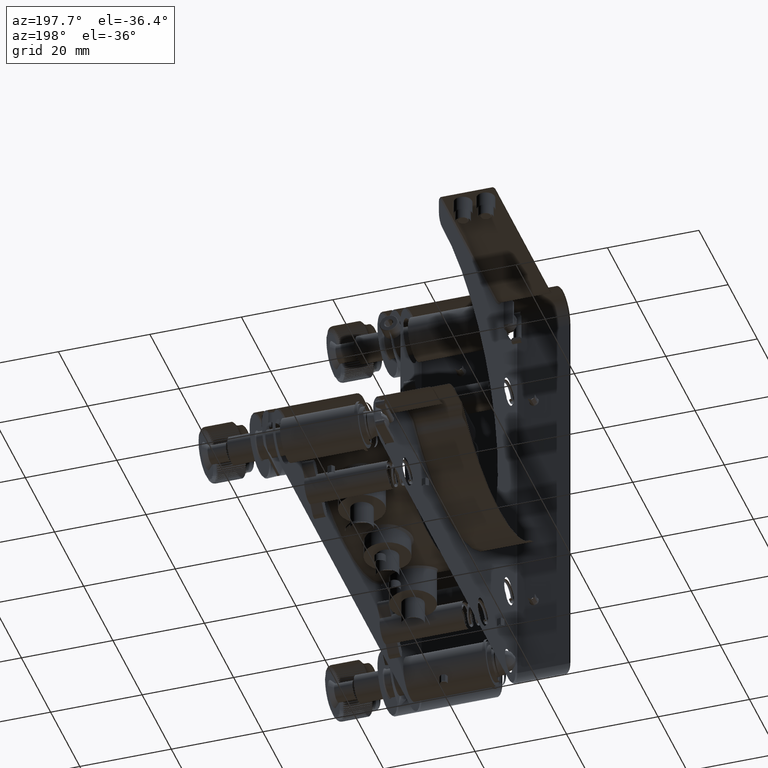
[diagram: clean part render]
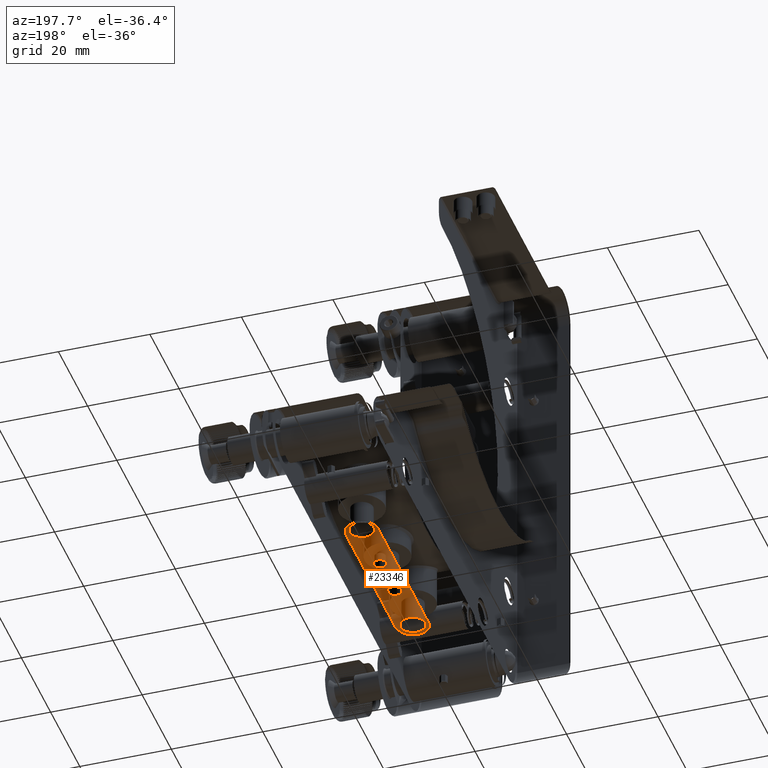
[diagram: same view with one face highlighted and labeled with its STEP entity id]
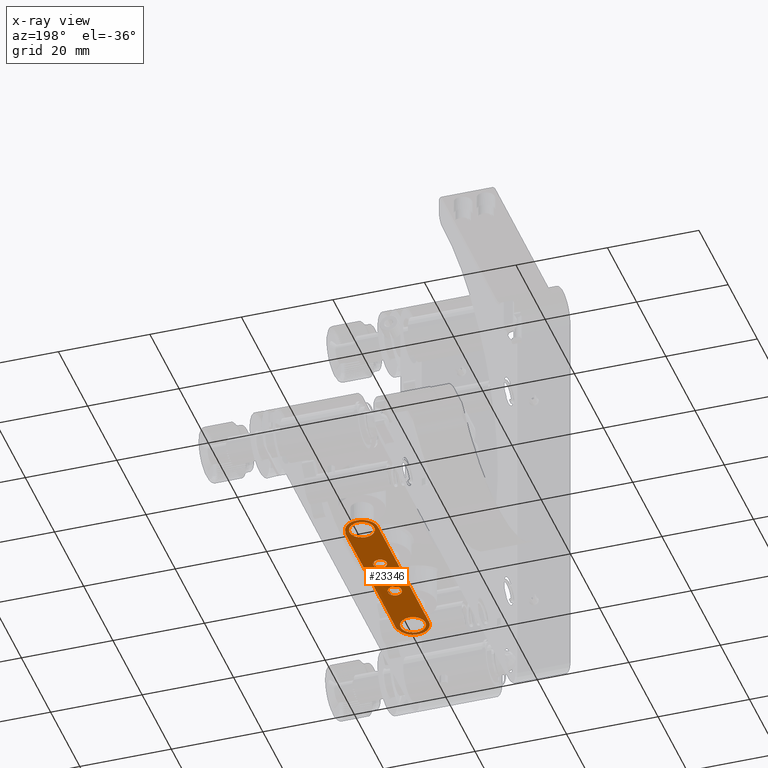
[diagram: x-ray of the same camera — body ghosted, the highlighted face saturated]
A machine part, auxiliary view. The second image highlights one B-rep face of the part: STEP entity #23346.
The next image is the same camera in x-ray: the body ghosted, the highlighted face saturated — about 0% of this face is hidden behind the body in this view.
In plain terms, the highlighted planar face has unit normal (0, 0, -1).
Its self-contained STEP definition (entity closure, byte-faithful):
#184 = EDGE_CURVE ( 'NONE', #22602, #35851, #21252, .T. ) ;
#203 = CARTESIAN_POINT ( 'NONE',  ( 0.3795344323298357470, 6.412260381202104398, -50.20000000001800800 ) ) ;
#240 = EDGE_LOOP ( 'NONE', ( #40561, #46125 ) ) ;
#431 = CARTESIAN_POINT ( 'NONE',  ( -2.359223248609979784, 1.359771247032254715, -50.20000000001800089 ) ) ;
#456 = CARTESIAN_POINT ( 'NONE',  ( 2.159100474478578224, -19.15927614393495659, -50.19999999996116458 ) ) ;
#709 = CARTESIAN_POINT ( 'NONE',  ( 0.3534291735368639831, 2.700000000061209882, -50.20000000001801510 ) ) ;
#861 = CARTESIAN_POINT ( 'NONE',  ( 1.412260381202098403, 4.620465567670169804, -50.20000000001800089 ) ) ;
#953 = CARTESIAN_POINT ( 'NONE',  ( 3.499999999999990230, -17.95814892864851231, -50.19999999999998863 ) ) ;
#1113 = CARTESIAN_POINT ( 'NONE',  ( 1.659276143969886652, -2.159100474524032531, -50.20000000001800800 ) ) ;
#1134 = CARTESIAN_POINT ( 'NONE',  ( 1.359771247003628503, 15.14077675143968982, -50.19999999996117879 ) ) ;
#1315 = CARTESIAN_POINT ( 'NONE',  ( -1.159516921459032845, -3.983907256050452705, -50.19999999996115037 ) ) ;
#1319 = FACE_BOUND ( 'NONE', #37220, .T. ) ;
#1331 = CARTESIAN_POINT ( 'NONE',  ( -1.359771247003626726, 19.85922324856030841, -50.19999999996116458 ) ) ;
#1634 = CARTESIAN_POINT ( 'NONE',  ( -0.8910927439495412994, -6.284516921459028183, -50.19999999996115747 ) ) ;
#1674 = CARTESIAN_POINT ( 'NONE',  ( -2.629726227008703177, 16.79328071222879259, -50.19999999996117168 ) ) ;
#1751 = CARTESIAN_POINT ( 'NONE',  ( 1.762666431298150593, 20.55825235923990135, -50.19999999999998863 ) ) ;
#1865 = B_SPLINE_CURVE_WITH_KNOTS ( 'NONE', 3,
 ( #30729, #9612, #26138, #1751, #2549, #46962, #5536, #43188, #19087, #27204 ),
 .UNSPECIFIED., .F., .F.,
 ( 4, 2, 2, 2, 4 ),
 ( 0.000000000000000000, 0.2500000000000000000, 0.5000000000000000000, 0.7500000000000000000, 1.000000000000000000 ),
 .UNSPECIFIED. ) ;
#1905 = CARTESIAN_POINT ( 'NONE',  ( 0.3795344323149583698, -6.537260381146730914, -50.19999999996116458 ) ) ;
#1920 = CARTESIAN_POINT ( 'NONE',  ( 2.359223248609979784, -1.359771247032253827, -50.20000000001800089 ) ) ;
#2169 = CARTESIAN_POINT ( 'NONE',  ( -0.3795344323149573706, -6.537260381146729138, -50.19999999996117168 ) ) ;
#2402 = CARTESIAN_POINT ( 'NONE',  ( -1.449999999977080289, -4.685195443848612307, -50.19999999996115747 ) ) ;
#2480 = CARTESIAN_POINT ( 'NONE',  ( 2.700000000004366019, 17.14657082647057607, -50.19999999996117168 ) ) ;
#2533 = CARTESIAN_POINT ( 'NONE',  ( 2.700000000036712144, 1.983927814677386482E-16, -50.20000000001080309 ) ) ;
#2549 = CARTESIAN_POINT ( 'NONE',  ( 2.150913519912204475, 20.29883394839363220, -50.19999999999998863 ) ) ;
#2617 = CARTESIAN_POINT ( 'NONE',  ( -2.700000000004366463, 17.85342917352942393, -50.19999999996116458 ) ) ;
#2843 = CARTESIAN_POINT ( 'NONE',  ( 0.7067192877711989674, -14.87027377299130571, -50.19999999996116458 ) ) ;
#2922 = CARTESIAN_POINT ( 'NONE',  ( 2.629726227064068222, 0.7067192877860780653, -50.20000000001800800 ) ) ;
#3370 = CARTESIAN_POINT ( 'NONE',  ( -2.629726227008703621, -16.79328071222881036, -50.19999999996116458 ) ) ;
#3456 = CARTESIAN_POINT ( 'NONE',  ( 3.500000000000000444, 17.50000000000000711, -50.59999999999997300 ) ) ;
#3632 = CARTESIAN_POINT ( 'NONE',  ( 2.359223248560310626, -16.14022875299637505, -50.19999999996115747 ) ) ;
#3723 = CARTESIAN_POINT ( 'NONE',  ( 3.499999999999995115, -5.833333333333327708, -50.59999999999998010 ) ) ;
#4424 = EDGE_CURVE ( 'NONE', #6648, #52735, #43608, .T. ) ;
#4543 = CARTESIAN_POINT ( 'NONE',  ( 0.1898045561588238561, 6.450000000033929481, -50.20000000001800800 ) ) ;
#4795 = CARTESIAN_POINT ( 'NONE',  ( 2.699999999979879384, -17.50000000000000711, -50.19999999995395967 ) ) ;
#4847 = PLANE ( 'NONE',  #48909 ) ;
#5014 = CARTESIAN_POINT ( 'NONE',  ( -3.058252359239904461, -19.26266643129813971, -50.20000000000000284 ) ) ;
#5072 = CARTESIAN_POINT ( 'NONE',  ( 2.359223248560311070, -18.85977124700363561, -50.19999999996116458 ) ) ;
#5236 = VERTEX_POINT ( 'NONE', #27397 ) ;
#5445 = CARTESIAN_POINT ( 'NONE',  ( -1.659276143969885764, -2.159100474524033864, -50.20000000001802931 ) ) ;
#5536 = CARTESIAN_POINT ( 'NONE',  ( 3.058252359239903129, 19.26266643129815392, -50.19999999999998863 ) ) ;
#5597 = CARTESIAN_POINT ( 'NONE',  ( -0.3534291735294228798, -20.20000000000437979, -50.19999999996117168 ) ) ;
#5689 = CARTESIAN_POINT ( 'NONE',  ( 1.159516921459033512, -6.016092743949536192, -50.19999999996116458 ) ) ;
#5726 = CARTESIAN_POINT ( 'NONE',  ( -1.266990263143315865, 4.269752478445115074, -50.20000000001801510 ) ) ;
#5919 = CARTESIAN_POINT ( 'NONE',  ( 0.1898045561513836132, -3.425000000022913493, -50.19999999996116458 ) ) ;
#6004 = CARTESIAN_POINT ( 'NONE',  ( -1.412260381202098403, 4.620465567670168028, -50.20000000001800800 ) ) ;
#6005 = CARTESIAN_POINT ( 'NONE',  ( 2.359223248560311070, 16.14022875299637150, -50.19999999996116458 ) ) ;
#6017 = CARTESIAN_POINT ( 'NONE',  ( -3.408904368339104707, -18.41611759525747516, -50.19999999999998863 ) ) ;
#6237 = CARTESIAN_POINT ( 'NONE',  ( -1.449999999988529797, -5.124999999999993783, -50.19999999998057660 ) ) ;
#6648 = VERTEX_POINT ( 'NONE', #48501 ) ;
#6903 = CARTESIAN_POINT ( 'NONE',  ( 2.629726227008704509, -16.79328071222881036, -50.19999999996117168 ) ) ;
#7225 = EDGE_CURVE ( 'NONE', #35851, #22602, #9220, .T. ) ;
#7321 = B_SPLINE_CURVE_WITH_KNOTS ( 'NONE', 3,
 ( #36170, #28554, #6903, #3632, #23446, #49099, #39961, #2843, #32098, #15313, #45057, #7429, #31829, #36687, #52653, #3370, #23976, #27766 ),
 .UNSPECIFIED., .F., .F.,
 ( 4, 2, 2, 2, 2, 2, 2, 2, 4 ),
 ( 0.000000000000000000, 0.1250000000000000000, 0.2500000000000000000, 0.3750000000000000000, 0.5000000000000000000, 0.6250000000000000000, 0.7500000000000000000, 0.8750000000000000000, 1.000000000000000000 ),
 .UNSPECIFIED. ) ;
#7429 = CARTESIAN_POINT ( 'NONE',  ( -1.359771247003626726, -15.14077675143970225, -50.19999999996116458 ) ) ;
#7625 = ORIENTED_EDGE ( 'NONE', *, *, #40771, .F. ) ;
#8299 = CARTESIAN_POINT ( 'NONE',  ( -1.659276143969886430, 2.159100474524033864, -50.20000000001800800 ) ) ;
#8594 = CARTESIAN_POINT ( 'NONE',  ( 1.659276143934954151, -19.65910047447858844, -50.19999999996116458 ) ) ;
#8724 = VERTEX_POINT ( 'NONE', #23561 ) ;
#8795 = ORIENTED_EDGE ( 'NONE', *, *, #46241, .F. ) ;
#8835 = CARTESIAN_POINT ( 'NONE',  ( -1.359771247032254715, 2.359223248609979784, -50.20000000001800800 ) ) ;
#8875 = CARTESIAN_POINT ( 'NONE',  ( -1.450000000033924374, 5.189804556158830628, -50.20000000001800800 ) ) ;
#8912 = FACE_BOUND ( 'NONE', #240, .T. ) ;
#9072 = CARTESIAN_POINT ( 'NONE',  ( 3.408904368339095825, -18.41611759525747871, -50.19999999999999574 ) ) ;
#9220 = B_SPLINE_CURVE_WITH_KNOTS ( 'NONE', 3,
 ( #17288, #12944, #17820, #49478, #24870, #25144, #37328, #203, #4543, #21080, #25404, #50547, #29464, #33802, #29738, #45966, #8875, #46227 ),
 .UNSPECIFIED., .F., .F.,
 ( 4, 2, 2, 2, 2, 2, 2, 2, 4 ),
 ( 0.000000000000000000, 0.1250000000000000555, 0.2500000000000001110, 0.3750000000000001110, 0.5000000000000001110, 0.6250000000000001110, 0.7500000000000001110, 0.8750000000000000000, 1.000000000000000000 ),
 .UNSPECIFIED. ) ;
#9262 = CARTESIAN_POINT ( 'NONE',  ( -1.159516921504488929, 4.108907256015528198, -50.20000000001799378 ) ) ;
#9298 = EDGE_CURVE ( 'NONE', #35575, #13661, #21925, .T. ) ;
#9322 = CARTESIAN_POINT ( 'NONE',  ( -3.058252359239888474, 19.26266643129814682, -50.19999999999998153 ) ) ;
#9593 = CARTESIAN_POINT ( 'NONE',  ( -3.499999999999986677, 17.50000000000000711, -50.19999999999998863 ) ) ;
#9606 = EDGE_CURVE ( 'NONE', #16915, #42093, #1865, .T. ) ;
#9612 = CARTESIAN_POINT ( 'NONE',  ( 0.4581489286485169732, 20.99999999999999645, -50.19999999999998863 ) ) ;
#9797 = CARTESIAN_POINT ( 'NONE',  ( -2.699999999979879384, 17.49999999999999645, -50.19999999995395967 ) ) ;
#9861 = CARTESIAN_POINT ( 'NONE',  ( -3.408904368339091384, 18.41611759525748937, -50.19999999999998863 ) ) ;
#9990 = CARTESIAN_POINT ( 'NONE',  ( -1.412260381146734467, -4.495465567685038799, -50.19999999996115747 ) ) ;
#10033 = CARTESIAN_POINT ( 'NONE',  ( 0.1898045561513834745, -6.574999999977076293, -50.19999999996116458 ) ) ;
#10247 = EDGE_CURVE ( 'NONE', #8724, #26301, #39268, .T. ) ;
#10271 = CARTESIAN_POINT ( 'NONE',  ( -1.449999999988531130, -4.874999999999993783, -50.19999999998057660 ) ) ;
#10353 = CARTESIAN_POINT ( 'NONE',  ( 2.699999999979879384, 17.49999999999999645, -50.19999999995395967 ) ) ;
#10751 = CARTESIAN_POINT ( 'NONE',  ( -0.7067192877711991894, 20.12972622700869962, -50.19999999996117168 ) ) ;
#11297 = CARTESIAN_POINT ( 'NONE',  ( 1.659276143934953041, 19.65910047447857778, -50.19999999996116458 ) ) ;
#11863 = CARTESIAN_POINT ( 'NONE',  ( 3.499999999999997780, 5.833333333333341031, -50.59999999999997300 ) ) ;
#11869 = VECTOR ( 'NONE', #29440, 1000.000000000000000 ) ;
#12637 = CARTESIAN_POINT ( 'NONE',  ( -0.7067192877860776212, 2.629726227064067778, -50.20000000001800089 ) ) ;
#12845 = EDGE_CURVE ( 'NONE', #38473, #18184, #21001, .T. ) ;
#12847 = ORIENTED_EDGE ( 'NONE', *, *, #9606, .F. ) ;
#12907 = CARTESIAN_POINT ( 'NONE',  ( 0.7067192877860777322, 2.629726227064068222, -50.20000000001800800 ) ) ;
#12918 = CARTESIAN_POINT ( 'NONE',  ( -1.449999999999981970, 17.50000000000000711, -50.19999999999998863 ) ) ;
#12930 = CARTESIAN_POINT ( 'NONE',  ( 1.359771247003628503, -19.85922324856032972, -50.19999999996117879 ) ) ;
#12944 = CARTESIAN_POINT ( 'NONE',  ( 1.450000000033924374, 5.189804556158828852, -50.20000000001801510 ) ) ;
#13051 = CARTESIAN_POINT ( 'NONE',  ( -0.8910927439844742448, 3.840483078495515734, -50.20000000001800089 ) ) ;
#13141 = CARTESIAN_POINT ( 'NONE',  ( 0.9161175952574733827, -20.90890436833909760, -50.19999999999997442 ) ) ;
#13173 = CARTESIAN_POINT ( 'NONE',  ( 2.359223248609979784, 1.359771247032254049, -50.20000000001799378 ) ) ;
#13661 = VERTEX_POINT ( 'NONE', #44675 ) ;
#13715 = CARTESIAN_POINT ( 'NONE',  ( -3.499999999999986677, 17.50000000000000711, -50.19999999999998863 ) ) ;
#13768 = CARTESIAN_POINT ( 'NONE',  ( 3.585534189730175569, 17.50000000000000711, -50.49664664797791858 ) ) ;
#13920 = EDGE_LOOP ( 'NONE', ( #52644, #17444 ) ) ;
#14030 = CARTESIAN_POINT ( 'NONE',  ( -2.700000000036712144, -1.322618543109125110E-16, -50.20000000001080309 ) ) ;
#14054 = ORIENTED_EDGE ( 'NONE', *, *, #43969, .F. ) ;
#14141 = CARTESIAN_POINT ( 'NONE',  ( -0.3534291735294228798, 14.79999999999563798, -50.19999999996117168 ) ) ;
#14153 = CARTESIAN_POINT ( 'NONE',  ( -0.4581489286485164736, -20.99999999999999289, -50.19999999999997442 ) ) ;
#14426 = CARTESIAN_POINT ( 'NONE',  ( -3.499999999999998224, -17.49999999999999645, -50.19999999999999574 ) ) ;
#14558 = CARTESIAN_POINT ( 'NONE',  ( 0.7067192877711989674, 20.12972622700869962, -50.19999999996116458 ) ) ;
#15313 = CARTESIAN_POINT ( 'NONE',  ( -0.3534291735294233794, -14.79999999999564508, -50.19999999996116458 ) ) ;
#16000 = B_SPLINE_CURVE_WITH_KNOTS ( 'NONE', 3,
 ( #49933, #953, #9072, #21555, #47160, #42111, #37793, #13141, #18489, #14153, #45895, #41839, #31206, #35000, #5014, #6017, #39064, #14426 ),
 .UNSPECIFIED., .F., .F.,
 ( 4, 2, 2, 2, 2, 2, 2, 2, 4 ),
 ( 0.000000000000000000, 0.1250000000000000000, 0.2500000000000000000, 0.3750000000000000000, 0.5000000000000000000, 0.6250000000000000000, 0.7500000000000000000, 0.8750000000000000000, 1.000000000000000000 ),
 .UNSPECIFIED. ) ;
#16679 = CARTESIAN_POINT ( 'NONE',  ( 3.585534189730164911, -17.49999999999999645, -50.49664664797792568 ) ) ;
#16915 = VERTEX_POINT ( 'NONE', #46697 ) ;
#16975 = CARTESIAN_POINT ( 'NONE',  ( -2.159100474524032975, 1.659276143969885764, -50.20000000001799378 ) ) ;
#17288 = CARTESIAN_POINT ( 'NONE',  ( 1.450000000008986101, 5.000000000000004441, -50.19999999999943441 ) ) ;
#17398 = CARTESIAN_POINT ( 'NONE',  ( -2.700000000004365575, 17.14657082647057607, -50.19999999996116458 ) ) ;
#17444 = ORIENTED_EDGE ( 'NONE', *, *, #53034, .F. ) ;
#17453 = CARTESIAN_POINT ( 'NONE',  ( 2.699999999979879384, -17.50000000000000711, -50.19999999995395967 ) ) ;
#17516 = CARTESIAN_POINT ( 'NONE',  ( -2.700000000061208993, 0.3534291735368637055, -50.20000000001800800 ) ) ;
#17662 = CARTESIAN_POINT ( 'NONE',  ( 0.7302475215548899223, 3.733009736856689909, -50.20000000001801510 ) ) ;
#17804 = CARTESIAN_POINT ( 'NONE',  ( 0.7067192877712002996, -20.12972622700870318, -50.19999999996115747 ) ) ;
#17820 = CARTESIAN_POINT ( 'NONE',  ( 1.412260381202099069, 5.379534432329840854, -50.20000000001800800 ) ) ;
#17857 = FACE_BOUND ( 'NONE', #20050, .T. ) ;
#18184 = VERTEX_POINT ( 'NONE', #14030 ) ;
#18188 = CARTESIAN_POINT ( 'NONE',  ( 0.7067192877860793976, -2.629726227064066890, -50.20000000001800800 ) ) ;
#18211 = CARTESIAN_POINT ( 'NONE',  ( -2.159100474478577336, 15.84072385606505406, -50.19999999996117168 ) ) ;
#18272 = CARTESIAN_POINT ( 'NONE',  ( -0.4581489286485053158, 21.00000000000000355, -50.19999999999998863 ) ) ;
#18398 = CARTESIAN_POINT ( 'NONE',  ( -0.8910927439495411884, -3.715483078540961603, -50.19999999996116458 ) ) ;
#18454 = CARTESIAN_POINT ( 'NONE',  ( 2.629726227064069111, -0.7067192877860780653, -50.20000000001802221 ) ) ;
#18477 = CARTESIAN_POINT ( 'NONE',  ( -2.359223248560310626, 16.14022875299636794, -50.19999999996117168 ) ) ;
#18489 = CARTESIAN_POINT ( 'NONE',  ( 0.4581489286485054824, -20.99999999999998934, -50.19999999999998863 ) ) ;
#18666 = CARTESIAN_POINT ( 'NONE',  ( 1.159516921459033956, -3.983907256050453594, -50.19999999996115747 ) ) ;
#18708 = CARTESIAN_POINT ( 'NONE',  ( 1.449999999977080734, -5.314804556151377923, -50.19999999996116458 ) ) ;
#18808 = B_SPLINE_CURVE_WITH_KNOTS ( 'NONE', 3,
 ( #9593, #51273, #9861, #9322, #38301, #43436, #30709, #26120, #18272, #26657 ),
 .UNSPECIFIED., .F., .F.,
 ( 4, 2, 2, 2, 4 ),
 ( 0.000000000000000000, 0.2499999999999998890, 0.4999999999999997780, 0.7499999999999998890, 1.000000000000000000 ),
 .UNSPECIFIED. ) ;
#18930 = ORIENTED_EDGE ( 'NONE', *, *, #38212, .F. ) ;
#19087 = CARTESIAN_POINT ( 'NONE',  ( 3.499999999999999112, 17.95814892864852297, -50.19999999999998863 ) ) ;
#20050 = EDGE_LOOP ( 'NONE', ( #52915, #33803 ) ) ;
#20260 = CARTESIAN_POINT ( 'NONE',  ( 3.499999999999992895, -17.49999999999999645, -50.59999999999998010 ) ) ;
#20270 = CARTESIAN_POINT ( 'NONE',  ( -2.699999999979879384, -17.50000000000000711, -50.19999999995395967 ) ) ;
#20902 = ORIENTED_EDGE ( 'NONE', *, *, #44179, .F. ) ;
#20917 = VERTEX_POINT ( 'NONE', #33869 ) ;
#21001 = B_SPLINE_CURVE_WITH_KNOTS ( 'NONE', 3,
 ( #53515, #44087, #2922, #13173, #49444, #49696, #50510, #12907, #709, #33488, #12637, #8835, #8299, #16975, #431, #24835, #17516, #21589 ),
 .UNSPECIFIED., .F., .F.,
 ( 4, 2, 2, 2, 2, 2, 2, 2, 4 ),
 ( 0.000000000000000000, 0.1250000000000000000, 0.2499999999999999445, 0.3749999999999999445, 0.5000000000000000000, 0.6250000000000001110, 0.7500000000000001110, 0.8750000000000001110, 1.000000000000000000 ),
 .UNSPECIFIED. ) ;
#21080 = CARTESIAN_POINT ( 'NONE',  ( -0.1898045561588240226, 6.450000000033930370, -50.20000000001799378 ) ) ;
#21252 = B_SPLINE_CURVE_WITH_KNOTS ( 'NONE', 3,
 ( #47147, #46883, #6004, #5726, #9262, #13051, #50945, #29578, #21998, #25785, #21465, #17662, #50666, #34172, #25515, #861, #50395, #30648 ),
 .UNSPECIFIED., .F., .F.,
 ( 4, 2, 2, 2, 2, 2, 2, 2, 4 ),
 ( 0.000000000000000000, 0.1250000000000000278, 0.2500000000000000555, 0.3750000000000000000, 0.5000000000000000000, 0.6249999999999998890, 0.7499999999999997780, 0.8750000000000000000, 1.000000000000000000 ),
 .UNSPECIFIED. ) ;
#21391 = DIRECTION ( 'NONE',  ( 0.000000000000000000, 1.365923996832131609E-16, -1.000000000000000000 ) ) ;
#21465 = CARTESIAN_POINT ( 'NONE',  ( 0.3795344323298368572, 3.587739618797907148, -50.20000000001800800 ) ) ;
#21555 = CARTESIAN_POINT ( 'NONE',  ( 3.058252359239892026, -19.26266643129813616, -50.19999999999998863 ) ) ;
#21589 = CARTESIAN_POINT ( 'NONE',  ( -2.700000000036712144, -1.322618543109125110E-16, -50.20000000001080309 ) ) ;
#21609 = CARTESIAN_POINT ( 'NONE',  ( 2.700000000004366019, -17.85342917352943459, -50.19999999996117168 ) ) ;
#21715 = CARTESIAN_POINT ( 'NONE',  ( -2.159100474524032531, -1.659276143969886652, -50.20000000001800800 ) ) ;
#21878 = CARTESIAN_POINT ( 'NONE',  ( -1.359771247003627614, -19.85922324856032617, -50.19999999996116458 ) ) ;
#21925 = B_SPLINE_CURVE_WITH_KNOTS ( 'NONE', 3,
 ( #6237, #22505, #31158, #26293, #39276, #1634, #35228, #2169, #30890, #10033, #1905, #34956, #22771, #5689, #51443, #22234, #18708, #51719 ),
 .UNSPECIFIED., .F., .F.,
 ( 4, 2, 2, 2, 2, 2, 2, 2, 4 ),
 ( 0.000000000000000000, 0.1250000000000000278, 0.2500000000000000555, 0.3750000000000000000, 0.5000000000000000000, 0.6249999999999998890, 0.7499999999999998890, 0.8750000000000000000, 1.000000000000000000 ),
 .UNSPECIFIED. ) ;
#21939 = CARTESIAN_POINT ( 'NONE',  ( 1.359771247003626948, 19.85922324856031196, -50.19999999996116458 ) ) ;
#21979 = CARTESIAN_POINT ( 'NONE',  ( 0.3534291735368644827, -2.700000000061208993, -50.20000000001800800 ) ) ;
#21998 = CARTESIAN_POINT ( 'NONE',  ( -0.1898045561588237451, 3.549999999966082065, -50.20000000001800800 ) ) ;
#22234 = CARTESIAN_POINT ( 'NONE',  ( 1.412260381146735355, -5.504534432314953207, -50.19999999996116458 ) ) ;
#22462 = CARTESIAN_POINT ( 'NONE',  ( 0.3795344323149576482, -3.462739618853259316, -50.19999999996115037 ) ) ;
#22505 = CARTESIAN_POINT ( 'NONE',  ( -1.449999999977080956, -5.314804556151377923, -50.19999999996117168 ) ) ;
#22602 = VERTEX_POINT ( 'NONE', #37688 ) ;
#22771 = CARTESIAN_POINT ( 'NONE',  ( 0.8910927439495417435, -6.284516921459028183, -50.19999999996115747 ) ) ;
#23213 = CARTESIAN_POINT ( 'NONE',  ( 2.159100474478577336, 19.15927614393496015, -50.19999999996116458 ) ) ;
#23326 = VECTOR ( 'NONE', #24645, 1000.000000000000000 ) ;
#23346 = ADVANCED_FACE ( 'NONE', ( #50581, #41943, #38434, #1319, #8912, #17857 ), #4847, .F. ) ;
#23446 = CARTESIAN_POINT ( 'NONE',  ( 2.159100474478577336, -15.84072385606505406, -50.19999999996116458 ) ) ;
#23561 = CARTESIAN_POINT ( 'NONE',  ( -2.699999999979879384, -17.50000000000000711, -50.19999999995395967 ) ) ;
#23612 = CARTESIAN_POINT ( 'NONE',  ( 2.629726227008703621, 16.79328071222879259, -50.19999999996115747 ) ) ;
#23751 = CARTESIAN_POINT ( 'NONE',  ( -2.629726227008703621, 18.20671928777120385, -50.19999999996116458 ) ) ;
#23976 = CARTESIAN_POINT ( 'NONE',  ( -2.700000000004366463, -17.14657082647058672, -50.19999999996116458 ) ) ;
#24645 = DIRECTION ( 'NONE',  ( 3.097720492815726673E-16, 1.000000000000000000, -0.000000000000000000 ) ) ;
#24835 = CARTESIAN_POINT ( 'NONE',  ( -2.629726227064069111, 0.7067192877860782874, -50.20000000001802931 ) ) ;
#24870 = CARTESIAN_POINT ( 'NONE',  ( 1.159516921504489373, 5.891092743984480684, -50.20000000001800800 ) ) ;
#25144 = CARTESIAN_POINT ( 'NONE',  ( 0.8910927439844742448, 6.159516921504494924, -50.20000000001801510 ) ) ;
#25404 = CARTESIAN_POINT ( 'NONE',  ( -0.3795344323298359135, 6.412260381202105286, -50.20000000001800800 ) ) ;
#25515 = CARTESIAN_POINT ( 'NONE',  ( 1.266990263143316531, 4.269752478445117738, -50.20000000001800800 ) ) ;
#25766 = CARTESIAN_POINT ( 'NONE',  ( -2.700000000036712144, -1.322618543109125110E-16, -50.20000000001080309 ) ) ;
#25785 = CARTESIAN_POINT ( 'NONE',  ( 0.1898045561588240504, 3.549999999966082065, -50.20000000001800800 ) ) ;
#25830 = EDGE_LOOP ( 'NONE', ( #7625, #43556, #12847, #18930, #38379 ) ) ;
#25976 = CARTESIAN_POINT ( 'NONE',  ( 1.449999999977080956, -4.874999999999995559, -50.19999999996116458 ) ) ;
#26120 = CARTESIAN_POINT ( 'NONE',  ( -0.9161175952574750481, 20.90890436833910115, -50.19999999999998863 ) ) ;
#26138 = CARTESIAN_POINT ( 'NONE',  ( 0.9161175952574854842, 20.90890436833910826, -50.19999999999999574 ) ) ;
#26293 = CARTESIAN_POINT ( 'NONE',  ( -1.266990263093647151, -5.855247521526257160, -50.19999999996117168 ) ) ;
#26301 = VERTEX_POINT ( 'NONE', #17453 ) ;
#26307 = CARTESIAN_POINT ( 'NONE',  ( -2.629726227064067334, -0.7067192877860795086, -50.20000000001800089 ) ) ;
#26596 = CARTESIAN_POINT ( 'NONE',  ( 1.659276143934954151, 15.34089952552142222, -50.19999999996116458 ) ) ;
#26657 = CARTESIAN_POINT ( 'NONE',  ( 6.221205739668555308E-15, 21.00000000000000355, -50.19999999999998863 ) ) ;
#26788 = CARTESIAN_POINT ( 'NONE',  ( -0.3795344323149566490, -3.462739618853260204, -50.19999999996117168 ) ) ;
#27002 = CARTESIAN_POINT ( 'NONE',  ( 6.392656291549184673E-15, 17.50000000000000711, -50.19999999999998863 ) ) ;
#27204 = CARTESIAN_POINT ( 'NONE',  ( 3.499999999999999556, 17.50000000000000711, -50.19999999999998863 ) ) ;
#27397 = CARTESIAN_POINT ( 'NONE',  ( -1.449999999988531130, -4.874999999999993783, -50.19999999998057660 ) ) ;
#27766 = CARTESIAN_POINT ( 'NONE',  ( -2.699999999979879384, -17.50000000000000711, -50.19999999995395967 ) ) ;
#28003 = EDGE_CURVE ( 'NONE', #52735, #6648, #47769, .T. ) ;
#28185 = LINE ( 'NONE', #29231, #23326 ) ;
#28554 = CARTESIAN_POINT ( 'NONE',  ( 2.700000000004365575, -17.14657082647059028, -50.19999999996115747 ) ) ;
#28660 = CARTESIAN_POINT ( 'NONE',  ( -2.159100474478577336, -19.15927614393497080, -50.19999999996117168 ) ) ;
#29231 = CARTESIAN_POINT ( 'NONE',  ( -3.499999999999987566, 17.50000000000000711, -50.19999999999998863 ) ) ;
#29440 = DIRECTION ( 'NONE',  ( -0.000000000000000000, -1.000000000000000000, -1.365923996832131609E-16 ) ) ;
#29464 = CARTESIAN_POINT ( 'NONE',  ( -0.8910927439844745779, 6.159516921504494924, -50.20000000001800089 ) ) ;
#29578 = CARTESIAN_POINT ( 'NONE',  ( -0.3795344323298360800, 3.587739618797907148, -50.20000000001801510 ) ) ;
#29738 = CARTESIAN_POINT ( 'NONE',  ( -1.266990263143316531, 5.730247521554894696, -50.20000000001800800 ) ) ;
#29825 = CARTESIAN_POINT ( 'NONE',  ( -2.700000000061209438, -0.3534291735368645937, -50.20000000001800800 ) ) ;
#29845 = CARTESIAN_POINT ( 'NONE',  ( -0.7067192877711996335, 14.87027377299129505, -50.19999999996116458 ) ) ;
#30574 = CARTESIAN_POINT ( 'NONE',  ( 1.449999999977081622, -4.685195443848612307, -50.19999999996116458 ) ) ;
#30648 = CARTESIAN_POINT ( 'NONE',  ( 1.450000000008986101, 5.000000000000004441, -50.19999999999943441 ) ) ;
#30709 = CARTESIAN_POINT ( 'NONE',  ( -1.762666431298140379, 20.55825235923991201, -50.19999999999999574 ) ) ;
#30729 = CARTESIAN_POINT ( 'NONE',  ( 6.221205739668555308E-15, 21.00000000000000355, -50.19999999999998863 ) ) ;
#30890 = CARTESIAN_POINT ( 'NONE',  ( -0.1898045561513828916, -6.574999999977076293, -50.19999999996116458 ) ) ;
#31064 = CARTESIAN_POINT ( 'NONE',  ( -2.359223248560311070, 18.85977124700362495, -50.19999999996117168 ) ) ;
#31158 = CARTESIAN_POINT ( 'NONE',  ( -1.412260381146734689, -5.504534432314953207, -50.19999999996116458 ) ) ;
#31206 = CARTESIAN_POINT ( 'NONE',  ( -2.150913519912203586, -20.29883394839362509, -50.20000000000000284 ) ) ;
#31334 = CARTESIAN_POINT ( 'NONE',  ( 2.359223248560310626, 18.85977124700362140, -50.19999999996115747 ) ) ;
#31449 = CARTESIAN_POINT ( 'NONE',  ( -1.449999999988529797, -5.124999999999993783, -50.19999999998057660 ) ) ;
#31594 = CARTESIAN_POINT ( 'NONE',  ( 2.699999999979879384, 17.49999999999999645, -50.19999999995395967 ) ) ;
#31829 = CARTESIAN_POINT ( 'NONE',  ( -1.659276143934953263, -15.34089952552142755, -50.19999999996117168 ) ) ;
#32098 = CARTESIAN_POINT ( 'NONE',  ( 0.3534291735294230463, -14.79999999999564508, -50.19999999996116458 ) ) ;
#33488 = CARTESIAN_POINT ( 'NONE',  ( -0.3534291735368644272, 2.700000000061208549, -50.20000000001799378 ) ) ;
#33666 = B_SPLINE_CURVE_WITH_KNOTS ( 'NONE', 3,
 ( #25766, #29825, #26307, #38231, #21715, #5445, #47128, #39030, #42808, #21979, #18188, #51192, #1113, #33892, #1920, #18454, #34972, #50376 ),
 .UNSPECIFIED., .F., .F.,
 ( 4, 2, 2, 2, 2, 2, 2, 2, 4 ),
 ( 0.000000000000000000, 0.1249999999999999167, 0.2499999999999998890, 0.3749999999999998890, 0.5000000000000000000, 0.6250000000000000000, 0.7500000000000000000, 0.8750000000000001110, 1.000000000000000000 ),
 .UNSPECIFIED. ) ;
#33802 = CARTESIAN_POINT ( 'NONE',  ( -1.159516921504489151, 5.891092743984481572, -50.20000000001800800 ) ) ;
#33803 = ORIENTED_EDGE ( 'NONE', *, *, #4424, .F. ) ;
#33869 = CARTESIAN_POINT ( 'NONE',  ( -3.499999999999998224, -17.49999999999999645, -50.19999999999999574 ) ) ;
#33878 = B_SPLINE_CURVE_WITH_KNOTS ( 'NONE', 3,
 ( #3456, #11863, #3723, #20260 ),
 .UNSPECIFIED., .F., .F.,
 ( 4, 4 ),
 ( 0.000000000000000000, 1.000000000000000000 ),
 .UNSPECIFIED. ) ;
#33892 = CARTESIAN_POINT ( 'NONE',  ( 2.159100474524033864, -1.659276143969885764, -50.20000000001801510 ) ) ;
#34172 = CARTESIAN_POINT ( 'NONE',  ( 1.159516921504489595, 4.108907256015531750, -50.20000000001801510 ) ) ;
#34367 = CARTESIAN_POINT ( 'NONE',  ( 0.8910927439495422986, -3.715483078540961603, -50.19999999996115747 ) ) ;
#34728 = CARTESIAN_POINT ( 'NONE',  ( -1.659276143934953041, 15.34089952552142222, -50.19999999996118589 ) ) ;
#34956 = CARTESIAN_POINT ( 'NONE',  ( 0.7302475215262627106, -6.391990263093643598, -50.19999999996116458 ) ) ;
#34972 = CARTESIAN_POINT ( 'NONE',  ( 2.700000000061208993, -0.3534291735368632614, -50.20000000001800800 ) ) ;
#35000 = CARTESIAN_POINT ( 'NONE',  ( -2.798833948393630422, -19.65091351991219071, -50.19999999999997442 ) ) ;
#35228 = CARTESIAN_POINT ( 'NONE',  ( -0.7302475215262617114, -6.391990263093642710, -50.19999999996116458 ) ) ;
#35408 = CARTESIAN_POINT ( 'NONE',  ( 2.629726227008704509, 18.20671928777120030, -50.19999999996117168 ) ) ;
#35575 = VERTEX_POINT ( 'NONE', #31449 ) ;
#35851 = VERTEX_POINT ( 'NONE', #36320 ) ;
#36170 = CARTESIAN_POINT ( 'NONE',  ( 2.699999999979879384, -17.50000000000000711, -50.19999999995395967 ) ) ;
#36320 = CARTESIAN_POINT ( 'NONE',  ( 1.450000000008986101, 5.000000000000004441, -50.19999999999943441 ) ) ;
#36687 = CARTESIAN_POINT ( 'NONE',  ( -2.159100474478578224, -15.84072385606505939, -50.19999999996116458 ) ) ;
#36785 = CARTESIAN_POINT ( 'NONE',  ( -2.700000000004365575, -17.85342917352943459, -50.19999999996116458 ) ) ;
#37220 = EDGE_LOOP ( 'NONE', ( #8795, #41340 ) ) ;
#37328 = CARTESIAN_POINT ( 'NONE',  ( 0.7302475215548889231, 6.266990263143320306, -50.20000000001800089 ) ) ;
#37688 = CARTESIAN_POINT ( 'NONE',  ( -1.450000000008986101, 5.000000000000004441, -50.19999999999943441 ) ) ;
#37793 = CARTESIAN_POINT ( 'NONE',  ( 1.762666431298139713, -20.55825235923989780, -50.19999999999998863 ) ) ;
#38212 = EDGE_CURVE ( 'NONE', #43725, #16915, #18808, .T. ) ;
#38231 = CARTESIAN_POINT ( 'NONE',  ( -2.359223248609978896, -1.359771247032256047, -50.20000000001801510 ) ) ;
#38250 = CARTESIAN_POINT ( 'NONE',  ( 0.7067192877712002996, 14.87027377299128972, -50.19999999996115747 ) ) ;
#38301 = CARTESIAN_POINT ( 'NONE',  ( -2.798833948393618876, 19.65091351991220847, -50.19999999999998863 ) ) ;
#38379 = ORIENTED_EDGE ( 'NONE', *, *, #39004, .F. ) ;
#38434 = FACE_BOUND ( 'NONE', #51188, .T. ) ;
#38473 = VERTEX_POINT ( 'NONE', #2533 ) ;
#39004 = EDGE_CURVE ( 'NONE', #20917, #43725, #28185, .T. ) ;
#39030 = CARTESIAN_POINT ( 'NONE',  ( -0.7067192877860786204, -2.629726227064068222, -50.20000000001801510 ) ) ;
#39064 = CARTESIAN_POINT ( 'NONE',  ( -3.499999999999999112, -17.95814892864850876, -50.19999999999999574 ) ) ;
#39072 = B_SPLINE_CURVE_WITH_KNOTS ( 'NONE', 3,
 ( #25976, #30574, #42489, #39507, #18666, #34367, #46807, #22462, #5919, #47343, #26788, #43299, #18398, #1315, #50861, #9990, #2402, #10271 ),
 .UNSPECIFIED., .F., .F.,
 ( 4, 2, 2, 2, 2, 2, 2, 2, 4 ),
 ( 0.000000000000000000, 0.1249999999999996947, 0.2499999999999993894, 0.3749999999999992784, 0.4999999999999992228, 0.6249999999999992228, 0.7499999999999992228, 0.8749999999999996669, 1.000000000000000000 ),
 .UNSPECIFIED. ) ;
#39268 = B_SPLINE_CURVE_WITH_KNOTS ( 'NONE', 3,
 ( #20270, #36785, #53276, #49200, #28660, #45156, #21878, #42171, #5597, #49992, #17804, #12930, #8594, #456, #5072, #46483, #21609, #4795 ),
 .UNSPECIFIED., .F., .F.,
 ( 4, 2, 2, 2, 2, 2, 2, 2, 4 ),
 ( 0.000000000000000000, 0.1249999999999999722, 0.2499999999999999445, 0.3749999999999999445, 0.5000000000000000000, 0.6250000000000001110, 0.7500000000000000000, 0.8750000000000000000, 1.000000000000000000 ),
 .UNSPECIFIED. ) ;
#39276 = CARTESIAN_POINT ( 'NONE',  ( -1.159516921459033290, -6.016092743949535304, -50.19999999996115037 ) ) ;
#39507 = CARTESIAN_POINT ( 'NONE',  ( 1.266990263093647151, -4.144752478473733959, -50.19999999996115037 ) ) ;
#39731 = CARTESIAN_POINT ( 'NONE',  ( -2.159100474478578224, 19.15927614393495304, -50.19999999996116458 ) ) ;
#39961 = CARTESIAN_POINT ( 'NONE',  ( 1.359771247003626948, -15.14077675143970048, -50.19999999996116458 ) ) ;
#40561 = ORIENTED_EDGE ( 'NONE', *, *, #184, .F. ) ;
#40771 = EDGE_CURVE ( 'NONE', #52509, #20917, #16000, .T. ) ;
#41340 = ORIENTED_EDGE ( 'NONE', *, *, #12845, .F. ) ;
#41839 = CARTESIAN_POINT ( 'NONE',  ( -1.762666431298150149, -20.55825235923989780, -50.19999999999997442 ) ) ;
#41879 = LINE ( 'NONE', #12918, #11869 ) ;
#41943 = FACE_BOUND ( 'NONE', #13920, .T. ) ;
#42093 = VERTEX_POINT ( 'NONE', #13768 ) ;
#42111 = CARTESIAN_POINT ( 'NONE',  ( 2.150913519912195149, -20.29883394839362509, -50.19999999999997442 ) ) ;
#42171 = CARTESIAN_POINT ( 'NONE',  ( -0.7067192877711996335, -20.12972622700870673, -50.19999999996116458 ) ) ;
#42489 = CARTESIAN_POINT ( 'NONE',  ( 1.412260381146735355, -4.495465567685037023, -50.19999999996115747 ) ) ;
#42808 = CARTESIAN_POINT ( 'NONE',  ( -0.3534291735368632614, -2.700000000061209438, -50.20000000001800089 ) ) ;
#43112 = CARTESIAN_POINT ( 'NONE',  ( 2.159100474478578224, 15.84072385606505051, -50.19999999996116458 ) ) ;
#43188 = CARTESIAN_POINT ( 'NONE',  ( 3.408904368339104263, 18.41611759525748937, -50.19999999999998863 ) ) ;
#43299 = CARTESIAN_POINT ( 'NONE',  ( -0.7302475215262611563, -3.608009736906346632, -50.19999999996115747 ) ) ;
#43436 = CARTESIAN_POINT ( 'NONE',  ( -2.150913519912192040, 20.29883394839363930, -50.19999999999998863 ) ) ;
#43506 = DIRECTION ( 'NONE',  ( 0.000000000000000000, 1.000000000000000000, 1.365923996832131609E-16 ) ) ;
#43514 = CARTESIAN_POINT ( 'NONE',  ( 2.700000000004365575, 17.85342917352942393, -50.19999999996115747 ) ) ;
#43556 = ORIENTED_EDGE ( 'NONE', *, *, #44128, .F. ) ;
#43608 = B_SPLINE_CURVE_WITH_KNOTS ( 'NONE', 3,
 ( #31594, #43514, #35408, #31334, #23213, #11297, #21939, #14558, #44049, #48087, #10751, #1331, #47562, #39731, #31064, #23751, #2617, #46547 ),
 .UNSPECIFIED., .F., .F.,
 ( 4, 2, 2, 2, 2, 2, 2, 2, 4 ),
 ( 0.000000000000000000, 0.1250000000000000000, 0.2500000000000000000, 0.3750000000000000000, 0.5000000000000000000, 0.6250000000000000000, 0.7500000000000000000, 0.8750000000000000000, 1.000000000000000000 ),
 .UNSPECIFIED. ) ;
#43725 = VERTEX_POINT ( 'NONE', #13715 ) ;
#43969 = EDGE_CURVE ( 'NONE', #13661, #5236, #39072, .T. ) ;
#44049 = CARTESIAN_POINT ( 'NONE',  ( 0.3534291735294230463, 20.20000000000436202, -50.19999999996116458 ) ) ;
#44087 = CARTESIAN_POINT ( 'NONE',  ( 2.700000000061209438, 0.3534291735368643161, -50.20000000001800800 ) ) ;
#44128 = EDGE_CURVE ( 'NONE', #42093, #52509, #33878, .T. ) ;
#44179 = EDGE_CURVE ( 'NONE', #5236, #35575, #41879, .T. ) ;
#44675 = CARTESIAN_POINT ( 'NONE',  ( 1.350000000001085665, -4.999999999999620748, -50.09999999999492104 ) ) ;
#45057 = CARTESIAN_POINT ( 'NONE',  ( -0.7067192877711991894, -14.87027377299130393, -50.19999999996117168 ) ) ;
#45156 = CARTESIAN_POINT ( 'NONE',  ( -1.659276143934953041, -19.65910047447859199, -50.19999999996118589 ) ) ;
#45895 = CARTESIAN_POINT ( 'NONE',  ( -0.9161175952574842629, -20.90890436833909760, -50.20000000000000284 ) ) ;
#45966 = CARTESIAN_POINT ( 'NONE',  ( -1.412260381202098625, 5.379534432329840854, -50.20000000001800800 ) ) ;
#46053 = ORIENTED_EDGE ( 'NONE', *, *, #9298, .F. ) ;
#46125 = ORIENTED_EDGE ( 'NONE', *, *, #7225, .F. ) ;
#46227 = CARTESIAN_POINT ( 'NONE',  ( -1.450000000008986101, 5.000000000000004441, -50.19999999999943441 ) ) ;
#46241 = EDGE_CURVE ( 'NONE', #18184, #38473, #33666, .T. ) ;
#46346 = CARTESIAN_POINT ( 'NONE',  ( 0.3534291735294238790, 14.79999999999563443, -50.19999999996116458 ) ) ;
#46483 = CARTESIAN_POINT ( 'NONE',  ( 2.629726227008703621, -18.20671928777121096, -50.19999999996115747 ) ) ;
#46547 = CARTESIAN_POINT ( 'NONE',  ( -2.699999999979879384, 17.49999999999999645, -50.19999999995395967 ) ) ;
#46697 = CARTESIAN_POINT ( 'NONE',  ( 6.221205739668555308E-15, 21.00000000000000355, -50.19999999999998863 ) ) ;
#46807 = CARTESIAN_POINT ( 'NONE',  ( 0.7302475215262621555, -3.608009736906348408, -50.19999999996117879 ) ) ;
#46883 = CARTESIAN_POINT ( 'NONE',  ( -1.450000000033924374, 4.810195443841181806, -50.20000000001802221 ) ) ;
#46962 = CARTESIAN_POINT ( 'NONE',  ( 2.798833948393631754, 19.65091351991220492, -50.19999999999997442 ) ) ;
#47128 = CARTESIAN_POINT ( 'NONE',  ( -1.359771247032255159, -2.359223248609979784, -50.20000000001801510 ) ) ;
#47147 = CARTESIAN_POINT ( 'NONE',  ( -1.450000000008986101, 5.000000000000004441, -50.19999999999943441 ) ) ;
#47160 = CARTESIAN_POINT ( 'NONE',  ( 2.798833948393621984, -19.65091351991219781, -50.19999999999998863 ) ) ;
#47343 = CARTESIAN_POINT ( 'NONE',  ( -0.1898045561513827806, -3.425000000022913049, -50.19999999996116458 ) ) ;
#47562 = CARTESIAN_POINT ( 'NONE',  ( -1.659276143934953263, 19.65910047447857778, -50.19999999996117168 ) ) ;
#47769 = B_SPLINE_CURVE_WITH_KNOTS ( 'NONE', 3,
 ( #9797, #17398, #1674, #18477, #18211, #34728, #51215, #29845, #14141, #46346, #38250, #1134, #26596, #43112, #6005, #23612, #2480, #10353 ),
 .UNSPECIFIED., .F., .F.,
 ( 4, 2, 2, 2, 2, 2, 2, 2, 4 ),
 ( 0.000000000000000000, 0.1249999999999999722, 0.2499999999999999445, 0.3749999999999999445, 0.5000000000000000000, 0.6250000000000001110, 0.7500000000000000000, 0.8750000000000000000, 1.000000000000000000 ),
 .UNSPECIFIED. ) ;
#48087 = CARTESIAN_POINT ( 'NONE',  ( -0.3534291735294233794, 20.20000000000436202, -50.19999999996116458 ) ) ;
#48501 = CARTESIAN_POINT ( 'NONE',  ( 2.699999999979879384, 17.49999999999999645, -50.19999999995395967 ) ) ;
#48909 = AXIS2_PLACEMENT_3D ( 'NONE', #27002, #21391, #43506 ) ;
#49099 = CARTESIAN_POINT ( 'NONE',  ( 1.659276143934953041, -15.34089952552143110, -50.19999999996116458 ) ) ;
#49163 = CARTESIAN_POINT ( 'NONE',  ( -2.699999999979879384, 17.49999999999999645, -50.19999999995395967 ) ) ;
#49200 = CARTESIAN_POINT ( 'NONE',  ( -2.359223248560310626, -18.85977124700363561, -50.19999999996117168 ) ) ;
#49444 = CARTESIAN_POINT ( 'NONE',  ( 2.159100474524032975, 1.659276143969885764, -50.20000000001800089 ) ) ;
#49478 = CARTESIAN_POINT ( 'NONE',  ( 1.266990263143316975, 5.730247521554894696, -50.20000000001801510 ) ) ;
#49696 = CARTESIAN_POINT ( 'NONE',  ( 1.659276143969885986, 2.159100474524033864, -50.20000000001802931 ) ) ;
#49933 = CARTESIAN_POINT ( 'NONE',  ( 3.499999999999990230, -17.49999999999999645, -50.19999999999998863 ) ) ;
#49992 = CARTESIAN_POINT ( 'NONE',  ( 0.3534291735294238790, -20.20000000000437268, -50.19999999996116458 ) ) ;
#50376 = CARTESIAN_POINT ( 'NONE',  ( 2.700000000036712144, 1.983927814677386482E-16, -50.20000000001080309 ) ) ;
#50395 = CARTESIAN_POINT ( 'NONE',  ( 1.450000000033924374, 4.810195443841180918, -50.20000000001800800 ) ) ;
#50510 = CARTESIAN_POINT ( 'NONE',  ( 1.359771247032254049, 2.359223248609979784, -50.20000000001800800 ) ) ;
#50547 = CARTESIAN_POINT ( 'NONE',  ( -0.7302475215548889231, 6.266990263143321194, -50.20000000001799378 ) ) ;
#50581 = FACE_OUTER_BOUND ( 'NONE', #25830, .T. ) ;
#50666 = CARTESIAN_POINT ( 'NONE',  ( 0.8910927439844750220, 3.840483078495516622, -50.20000000001800800 ) ) ;
#50861 = CARTESIAN_POINT ( 'NONE',  ( -1.266990263093646929, -4.144752478473733959, -50.19999999996116458 ) ) ;
#50945 = CARTESIAN_POINT ( 'NONE',  ( -0.7302475215548890342, 3.733009736856689464, -50.20000000001800800 ) ) ;
#51188 = EDGE_LOOP ( 'NONE', ( #14054, #46053, #20902 ) ) ;
#51192 = CARTESIAN_POINT ( 'NONE',  ( 1.359771247032255603, -2.359223248609978896, -50.20000000001800089 ) ) ;
#51215 = CARTESIAN_POINT ( 'NONE',  ( -1.359771247003627614, 15.14077675143968982, -50.19999999996116458 ) ) ;
#51273 = CARTESIAN_POINT ( 'NONE',  ( -3.499999999999986233, 17.95814892864852297, -50.19999999999998863 ) ) ;
#51443 = CARTESIAN_POINT ( 'NONE',  ( 1.266990263093647373, -5.855247521526256271, -50.19999999996116458 ) ) ;
#51719 = CARTESIAN_POINT ( 'NONE',  ( 1.449999999977080734, -5.124999999999993783, -50.19999999996116458 ) ) ;
#52509 = VERTEX_POINT ( 'NONE', #16679 ) ;
#52644 = ORIENTED_EDGE ( 'NONE', *, *, #10247, .F. ) ;
#52653 = CARTESIAN_POINT ( 'NONE',  ( -2.359223248560311070, -16.14022875299638216, -50.19999999996117168 ) ) ;
#52735 = VERTEX_POINT ( 'NONE', #49163 ) ;
#52915 = ORIENTED_EDGE ( 'NONE', *, *, #28003, .F. ) ;
#53034 = EDGE_CURVE ( 'NONE', #26301, #8724, #7321, .T. ) ;
#53276 = CARTESIAN_POINT ( 'NONE',  ( -2.629726227008703177, -18.20671928777121451, -50.19999999996117168 ) ) ;
#53515 = CARTESIAN_POINT ( 'NONE',  ( 2.700000000036712144, 1.983927814677386482E-16, -50.20000000001080309 ) ) ;